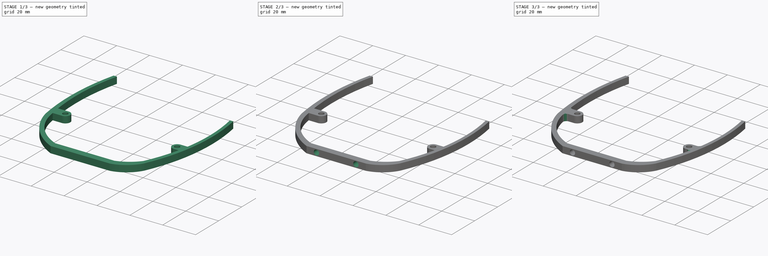
[diagram: build sequence overview — one tinted view per stage of 3, left to right]
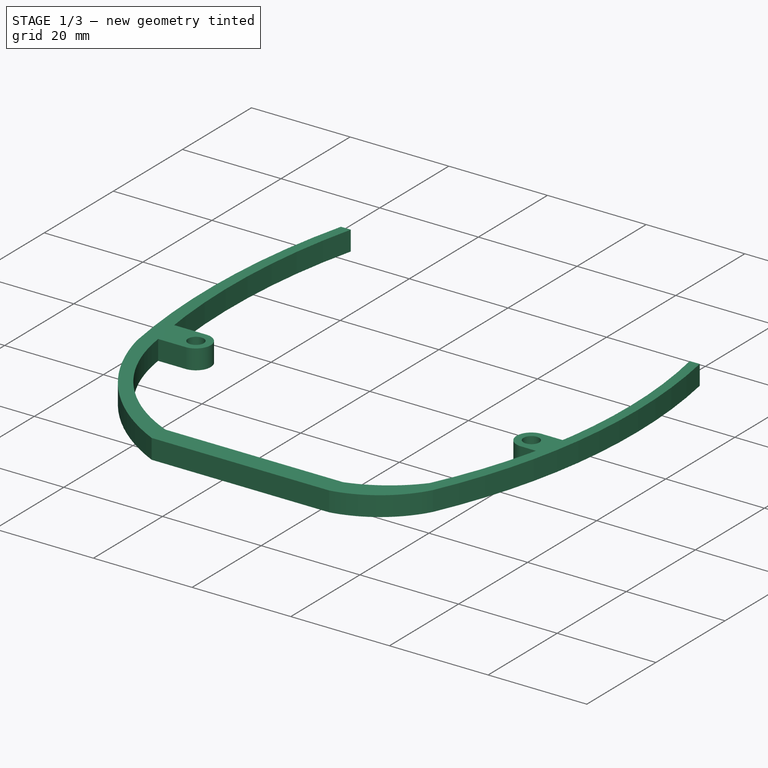
[diagram: stage 1 of 3 — iso view after this stage's code; geometry added in this stage tinted green]
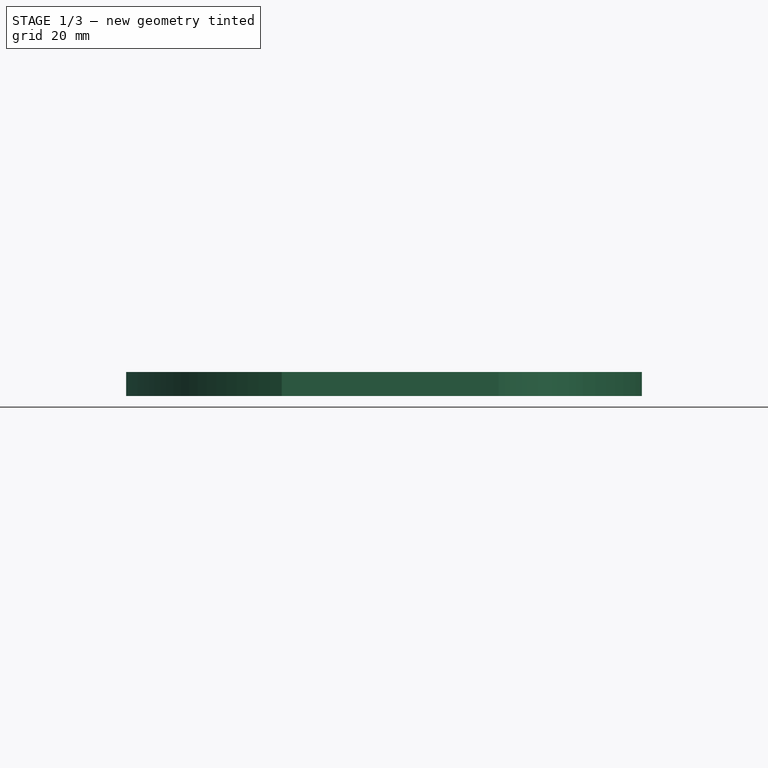
[diagram: stage 1 of 3 — front view after this stage's code; geometry added in this stage tinted green]
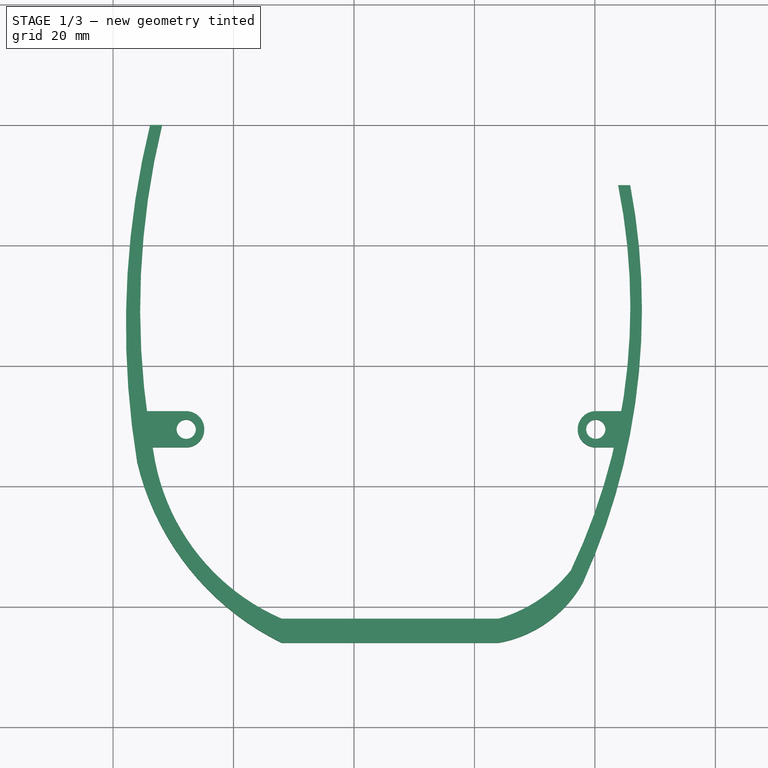
[diagram: stage 1 of 3 — top view after this stage's code; geometry added in this stage tinted green]
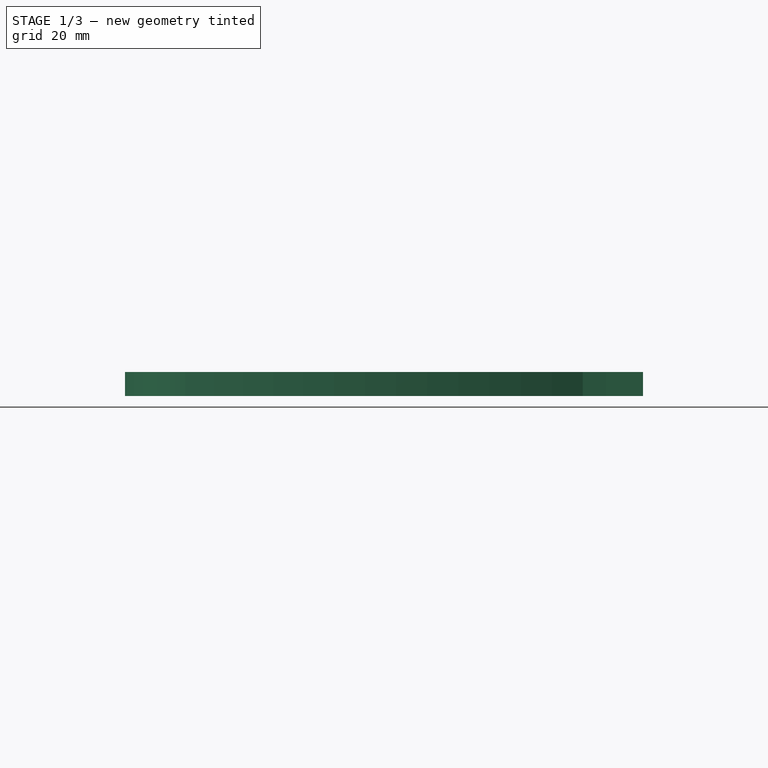
[diagram: stage 1 of 3 — right view after this stage's code; geometry added in this stage tinted green]
FCSTD DOCUMENT  (FreeCAD 0.15R4671 (Git))
Label: PalmMiddle
License: All rights reserved
LicenseURL: http://en.wikipedia.org/wiki/All_rights_reserved
objects: Sketcher::SketchObject×3, PartDesign::Pad×2, PartDesign::Pocket×1, Part::MultiFuse×1, PartDesign::Fillet×1
note: 11 computed .brp shape members not serialized (recipe doc carries the construction recipe); baked Part::Feature solids carry a one-line shape summary decoded from their .brp

FEATURE [Sketcher::SketchObject] Sketch
  sketch-geometry (18):
    g0: ArcOfCircle CenterX=20.5055 CenterY=13.6923 CenterZ=0 NormalX=0 NormalY=0 NormalZ=1 Radius=20 StartAngle=4.88802 EndAngle=5.77726
    g1: ArcOfCircle CenterX=-62.1893 CenterY=49.4104 CenterZ=0 NormalX=0 NormalY=0 NormalZ=1 Radius=110 StartAngle=5.85764 EndAngle=6.47147
    g2: ArcOfCircle CenterX=7.77666 CenterY=34.4213 CenterZ=0 NormalX=0 NormalY=0 NormalZ=1 Radius=45 StartAngle=3.3753 EndAngle=4.25737
    g3: LineSegment [constr] StartX=47.8107 StartY=0 StartZ=0 EndX=47.8107 EndY=90 EndZ=0
    g4: LineSegment [constr] StartX=-37.8597 StartY=0 StartZ=0 EndX=-37.8597 EndY=90 EndZ=0
    g5: GeomPoint [constr] X=0 Y=0 Z=0
    g6: ArcOfCircle CenterX=102.14 CenterY=46.7433 CenterZ=0 NormalX=0 NormalY=0 NormalZ=1 Radius=140 StartAngle=2.90175 EndAngle=3.30477
    g7: LineSegment StartX=-12 StartY=-6 StartZ=0 EndX=24 EndY=-6 EndZ=0
    g8: LineSegment [constr] StartX=0 StartY=0 StartZ=0 EndX=0 EndY=-6 EndZ=0
    g9: LineSegment StartX=-33.8523 StartY=80 StartZ=0 EndX=-31.8523 EndY=80 EndZ=0
    g10: LineSegment StartX=-12 StartY=-2 StartZ=0 EndX=24 EndY=-2 EndZ=0
    g11: LineSegment [constr] StartX=6 StartY=-6 StartZ=0 EndX=6 EndY=-2 EndZ=0
    g12: LineSegment StartX=45.8666 StartY=70 StartZ=0 EndX=43.8666 EndY=70 EndZ=0
    g13: ArcOfCircle CenterX=2.30584 CenterY=31.0355 CenterZ=0 NormalX=0 NormalY=0 NormalZ=1 Radius=36 StartAngle=3.33829 EndAngle=4.30372
    g14: LineSegment [constr] StartX=-36 StartY=24 StartZ=0 EndX=-33 EndY=24 EndZ=0
    g15: ArcOfCircle CenterX=17.3023 CenterY=21.0465 CenterZ=0 NormalX=0 NormalY=0 NormalZ=1 Radius=24 StartAngle=4.99521 EndAngle=5.60557
    g16: ArcOfCircle CenterX=-56.1144 CenterY=49.8057 CenterZ=0 NormalX=0 NormalY=0 NormalZ=1 Radius=102 StartAngle=5.83928 EndAngle=6.48249
    g17: ArcOfCircle CenterX=94.4947 CenterY=49.3988 CenterZ=0 NormalX=0 NormalY=0 NormalZ=1 Radius=130 StartAngle=2.90397 EndAngle=3.33823
  constraints (61):
    c: Coincident(g1,g0)
    c: Vertical(g3)
    c: Vertical(g4)
    c: Tangent(g3,g1)
    c: Radius(g0) = 20
    c: Radius(g2) = 45
    c: Radius(g1) = 110
    c: DistanceY(g2,g5) = -24
    c: DistanceX(g2,g5) = 36
    c: DistanceX(g5,g0) = 38
    c: DistanceY(g5,g0) = 4
    c: Coincident(g-1,g5)
    c: Equal(g4,g3)
    c: PointOnObject(g3,g-1)
    c: PointOnObject(g4,g-1)
    c: Coincident(g6,g2)
    c: Radius(g6) = 140
    c: Tangent(g4,g6)
    c: Coincident(g7,g2)
    c: Coincident(g7,g0)
    c: Horizontal(g7)
    c: DistanceX(g7) = 36
    c: Coincident(g8,g-1)
    c: PointOnObject(g8,g7)
    c: Vertical(g8)
    c: DistanceX(g-1,g2) = -12
    c: DistanceY(g-1,g2) = -6
    c: DistanceX(g-1,g4) = -37.8597
    c: DistanceX(g-1,g3) = 47.8107
    c: Horizontal(g9)
    c: Coincident(g6,g9)
    c: Horizontal(g10)
    c: PointOnObject(g11,g7)
    c: PointOnObject(g11,g10)
    c: Symmetric(g2,g0,g11)
    c: Symmetric(g10,g10,g11)
    c: DistanceY(g10,g0) = -4
    c: Coincident(g12,g1)
    c: Horizontal(g12)
    c: Equal(g12,g9)
    c: DistanceX(g12) = -2
    c: Coincident(g14,g2)
    c: Coincident(g14,g13)
    c: Horizontal(g14)
    c: Radius(g13) = 36
    c: DistanceX(g14) = 3
    c: Coincident(g13,g10)
    c: Coincident(g15,g10)
    c: Coincident(g16,g15)
    c: Coincident(g16,g12)
    c: Radius(g16) = 102
    c: Coincident(g17,g13)
    c: Coincident(g9,g17)
    c: Radius(g17) = 130
    c: DistanceY(g6,g4) = -80
    c: DistanceY(g1,g3) = -70
    c: Radius(g15) = 24
    c: DistanceY(g4,g4) = -90
    c: DistanceX(g-1,g15) = 36
    c: DistanceY(g-1,g15) = 6
    c: Equal(g10,g7)
FEATURE [PartDesign::Pad] Pad
  Length = 4
  Length2 = 100
  Sketch = -> Sketch
  Type = 0
FEATURE [Sketcher::SketchObject] Sketch002
  sketch-geometry (13):
    g0: ArcOfCircle CenterX=-27.855 CenterY=29.46 CenterZ=0 NormalX=0 NormalY=0 NormalZ=1 Radius=3 StartAngle=4.71239 EndAngle=7.85398
    g1: ArcOfCircle CenterX=40.145 CenterY=29.46 CenterZ=0 NormalX=0 NormalY=0 NormalZ=1 Radius=3 StartAngle=1.5708 EndAngle=4.71239
    g2: LineSegment [constr] StartX=-27.855 StartY=29.46 StartZ=0 EndX=40.145 EndY=29.46 EndZ=0
    g3: LineSegment StartX=40.145 StartY=32.46 StartZ=0 EndX=44.645 EndY=32.46 EndZ=0
    g4: LineSegment StartX=44.645 StartY=32.46 StartZ=0 EndX=44.645 EndY=26.46 EndZ=0
    g5: LineSegment StartX=40.145 StartY=26.46 StartZ=0 EndX=44.645 EndY=26.46 EndZ=0
    g6: LineSegment [constr] StartX=40.145 StartY=26.46 StartZ=0 EndX=40.145 EndY=32.46 EndZ=0
    g7: LineSegment [constr] StartX=-27.855 StartY=32.46 StartZ=0 EndX=-27.855 EndY=26.46 EndZ=0
    g8: LineSegment StartX=-27.855 StartY=32.46 StartZ=0 EndX=-34.855 EndY=32.46 EndZ=0
    g9: LineSegment StartX=-34.855 StartY=26.46 StartZ=0 EndX=-27.855 EndY=26.46 EndZ=0
    g10: LineSegment StartX=-34.855 StartY=32.46 StartZ=0 EndX=-34.855 EndY=26.46 EndZ=0
    g11: Circle CenterX=-27.855 CenterY=29.46 CenterZ=0 NormalX=0 NormalY=0 NormalZ=1 Radius=1.6
    g12: Circle CenterX=40.145 CenterY=29.46 CenterZ=0 NormalX=0 NormalY=0 NormalZ=1 Radius=1.6
  constraints (39):
    c: Equal(g1,g0)
    c: Radius(g1) = 3
    c: Coincident(g2,g0)
    c: Coincident(g2,g1)
    c: Horizontal(g2)
    c: DistanceY(g-1,g1) = 29.46
    c: DistanceX(g0,g1) = 68
    c: DistanceX(g-1,g0) = -27.855
    c: PointOnObject(g3,g1)
    c: Horizontal(g3)
    c: Coincident(g4,g3)
    c: Vertical(g4)
    c: Coincident(g5,g4)
    c: Tangent(g5,g1)
    c: Horizontal(g5)
    c: Coincident(g6,g5)
    c: Coincident(g6,g3)
    c: Vertical(g6)
    c: PointOnObject(g1,g6)
    c: PointOnObject(g1,g6)
    c: PointOnObject(g1,g6)
    c: DistanceX(g1,g3) = 4.5
    c: PointOnObject(g0,g7)
    c: Vertical(g7)
    c: Horizontal(g8)
    c: Coincident(g9,g7)
    c: Horizontal(g9)
    c: Coincident(g8,g7)
    c: Coincident(g0,g9)
    c: Coincident(g0,g9)
    c: Coincident(g0,g8)
    c: Coincident(g10,g8)
    c: Coincident(g10,g9)
    c: Vertical(g10)
    c: DistanceX(g8) = -7
    c: Coincident(g11,g0)
    c: Coincident(g12,g1)
    c: Equal(g12,g11)
    c: Radius(g11) = 1.6
FEATURE [PartDesign::Pad] Pad001
  Length = 4
  Length2 = 100
  Sketch = -> Sketch002
  Type = 0
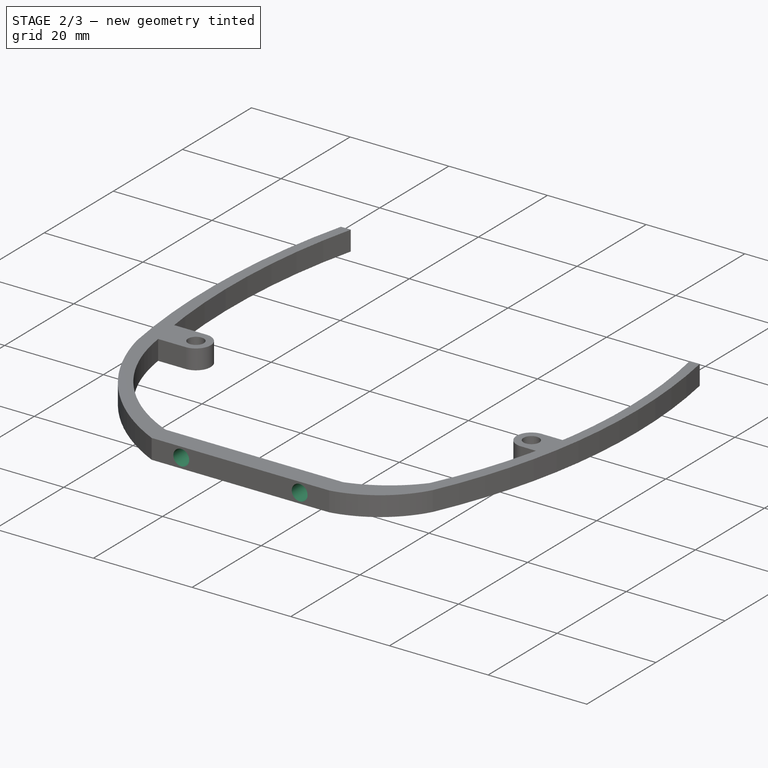
[diagram: stage 2 of 3 — iso view after this stage's code; geometry added in this stage tinted green]
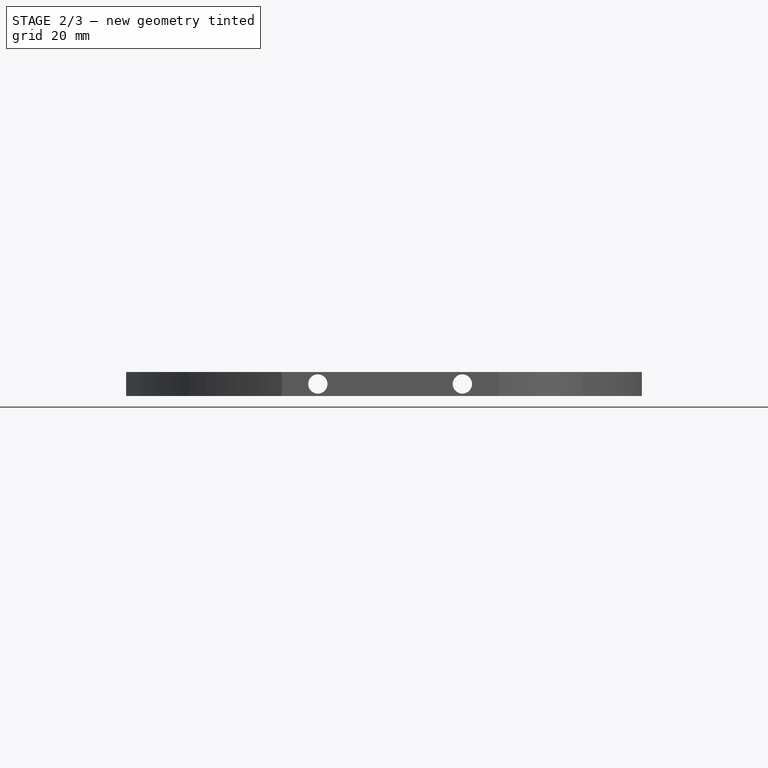
[diagram: stage 2 of 3 — front view after this stage's code; geometry added in this stage tinted green]
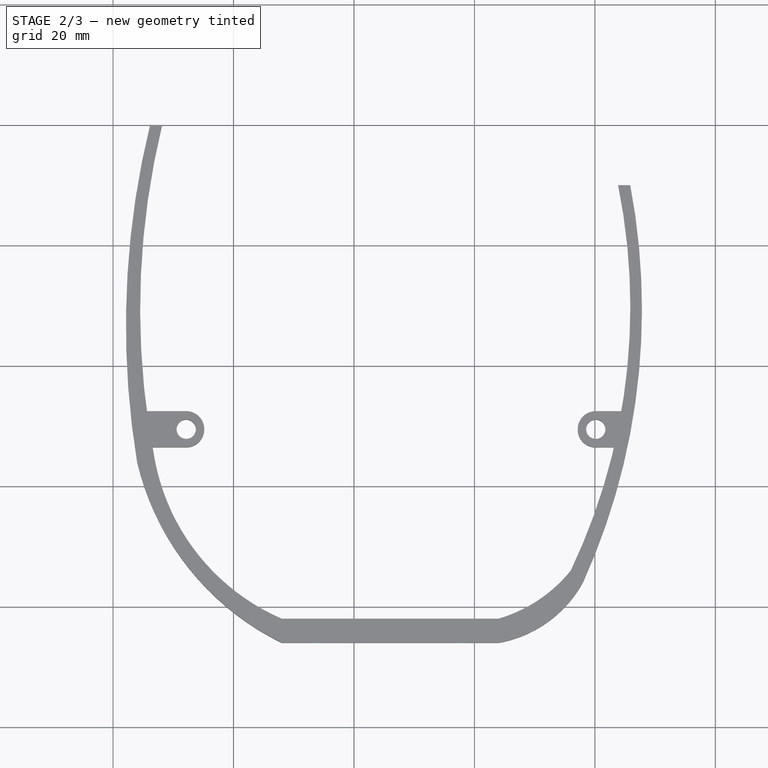
[diagram: stage 2 of 3 — top view after this stage's code; geometry added in this stage tinted green]
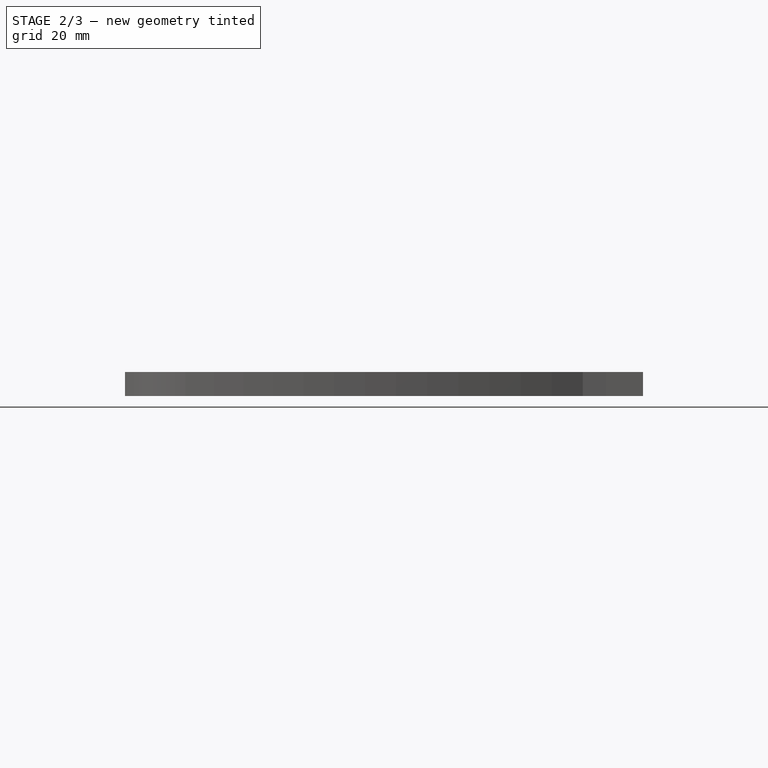
[diagram: stage 2 of 3 — right view after this stage's code; geometry added in this stage tinted green]
FEATURE [Sketcher::SketchObject] Sketch001
  ExternalGeometry = -> [Pad]
  Placement = pos=(0,-6,0) rot=(1,0,0;1.5708rad)
  Support = -> Pad [Face3]
  sketch-geometry (4):
    g0: Circle CenterX=-6 CenterY=2 CenterZ=0 NormalX=0 NormalY=0 NormalZ=1 Radius=1.6
    g1: Circle CenterX=18 CenterY=2 CenterZ=0 NormalX=0 NormalY=0 NormalZ=1 Radius=1.6
    g2: LineSegment [constr] StartX=6 StartY=0 StartZ=0 EndX=6 EndY=4 EndZ=0
    g3: LineSegment [constr] StartX=-6 StartY=2 StartZ=0 EndX=18 EndY=2 EndZ=0
  constraints (10):
    c: PointOnObject(g2,g-3)
    c: PointOnObject(g2,g-4)
    c: Symmetric(g-3,g-3,g2)
    c: Symmetric(g0,g1,g2)
    c: Equal(g0,g1)
    c: Radius(g1) = 1.6
    c: DistanceX(g0,g1) = 24
    c: Coincident(g3,g0)
    c: Coincident(g3,g1)
    c: Symmetric(g2,g2,g3)
FEATURE [PartDesign::Pocket] Pocket
  Length = 5
  Sketch = -> Sketch001
  Type = 1
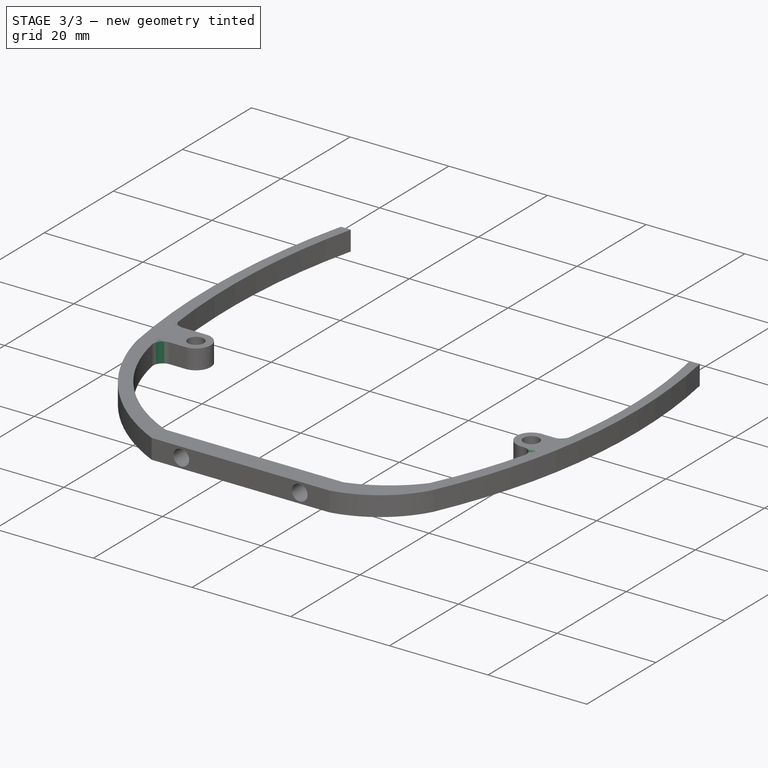
[diagram: stage 3 of 3 — iso view after this stage's code; geometry added in this stage tinted green]
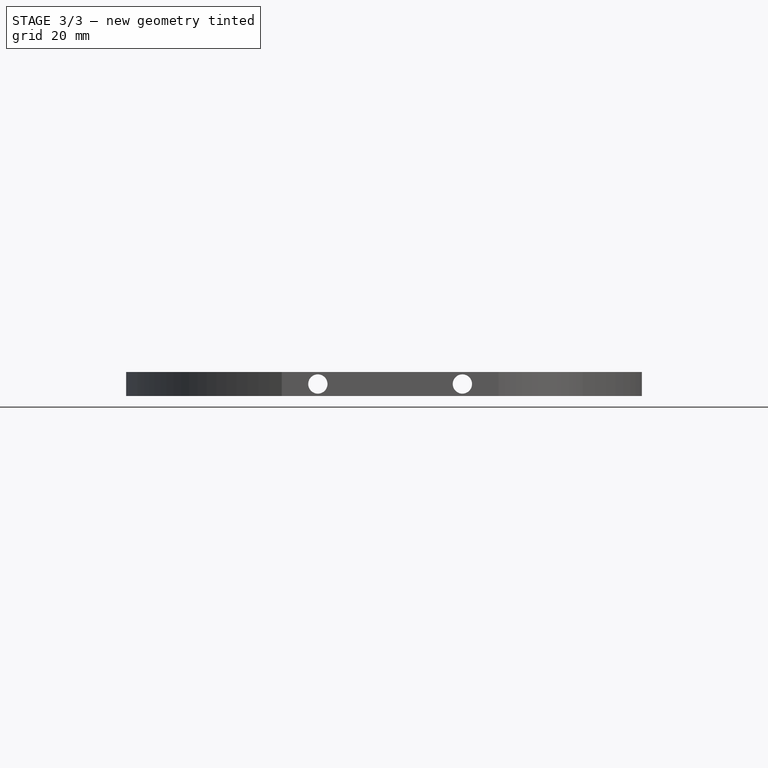
[diagram: stage 3 of 3 — front view after this stage's code; geometry added in this stage tinted green]
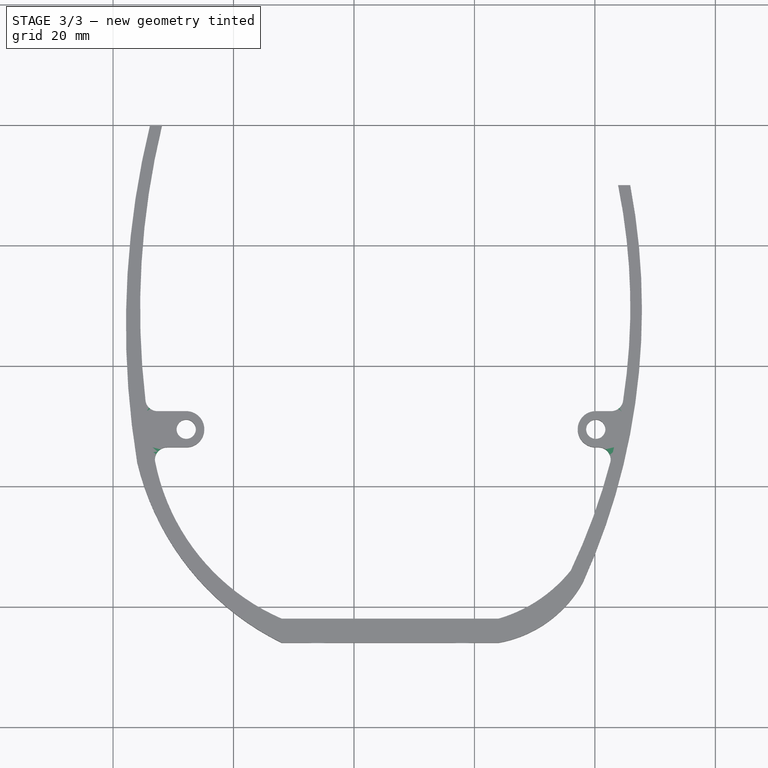
[diagram: stage 3 of 3 — top view after this stage's code; geometry added in this stage tinted green]
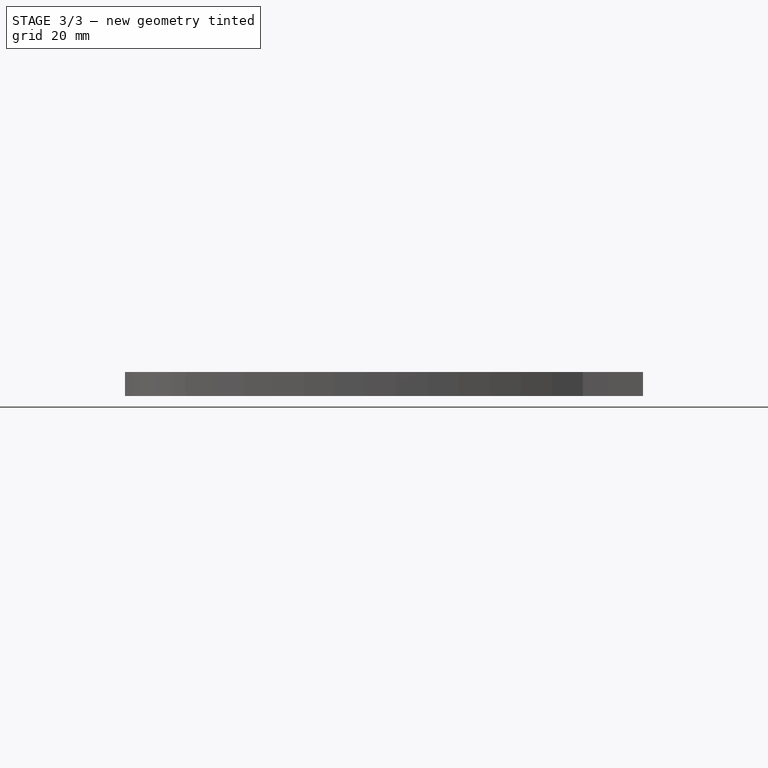
[diagram: stage 3 of 3 — right view after this stage's code; geometry added in this stage tinted green]
FEATURE [Part::MultiFuse] Fusion
  Shapes = -> [Pad001,Pocket]
FEATURE [PartDesign::Fillet] Fillet
  Base = -> Fusion [Edge45,Edge61,Edge52,Edge54]
  Radius = 2
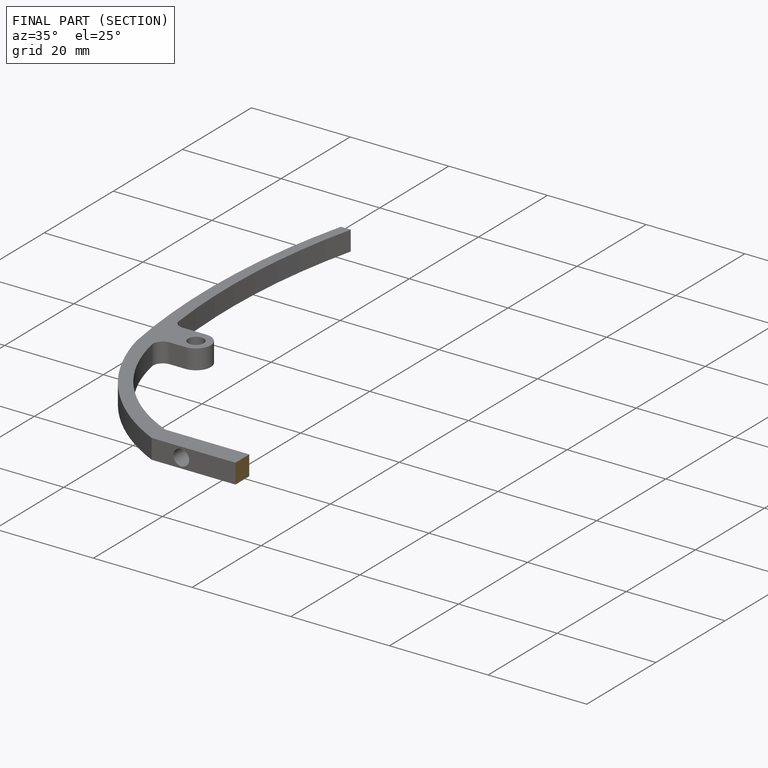
[diagram: finished part — half-section view (interior)]
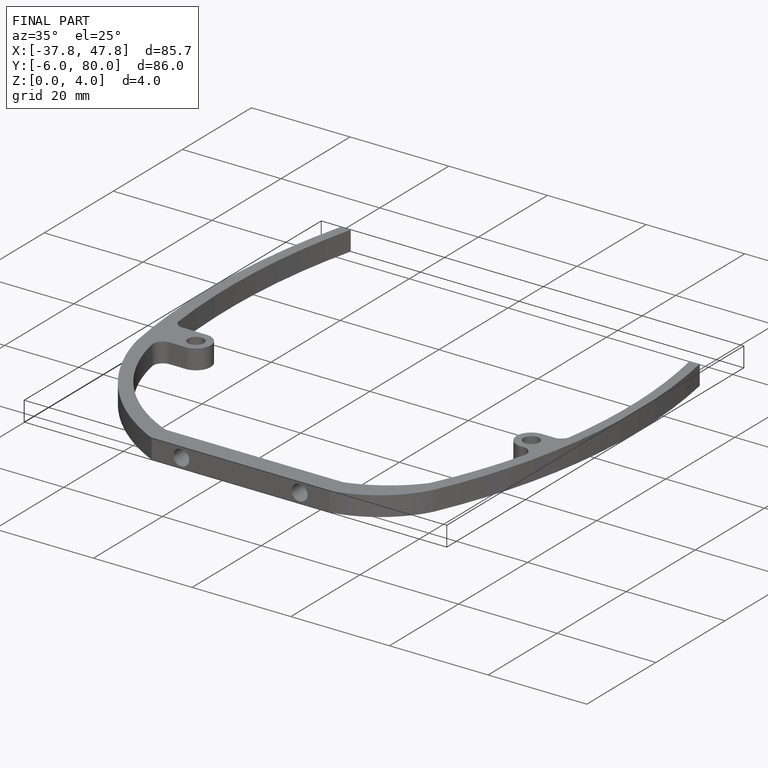
[diagram: finished part — iso view with bounding-box wireframe]
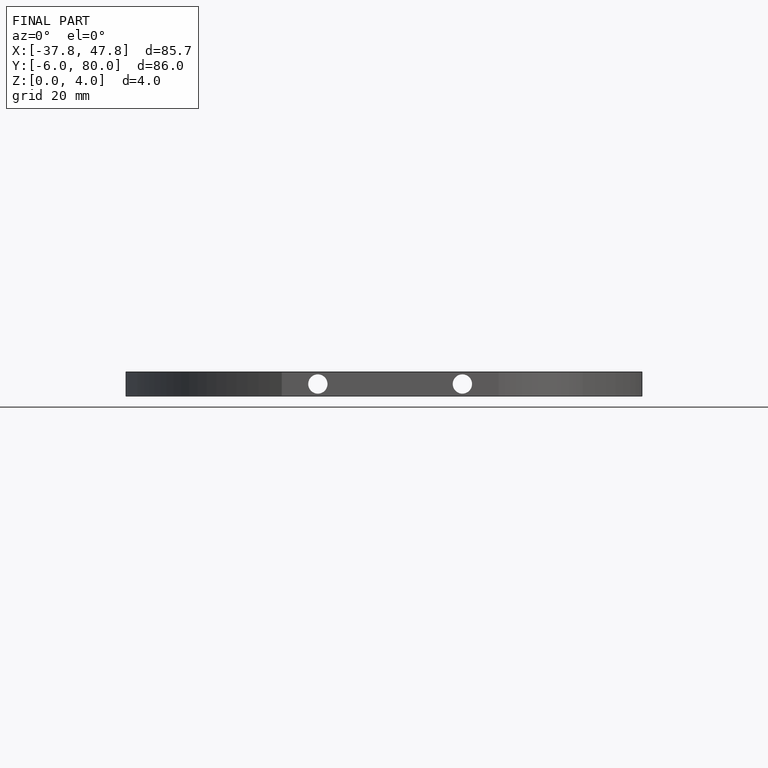
[diagram: finished part — front view with bounding-box wireframe]
